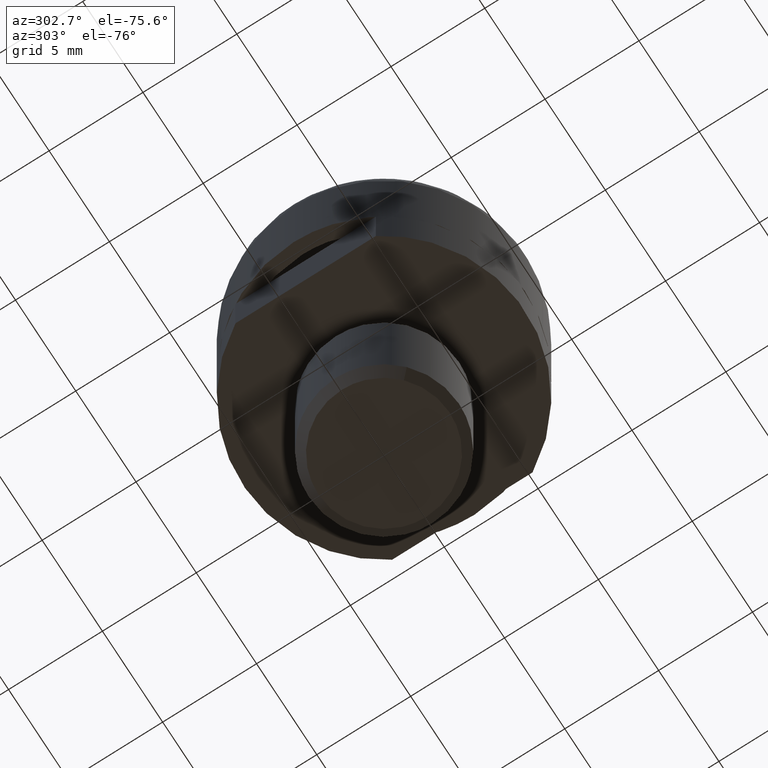
[diagram: clean part render]
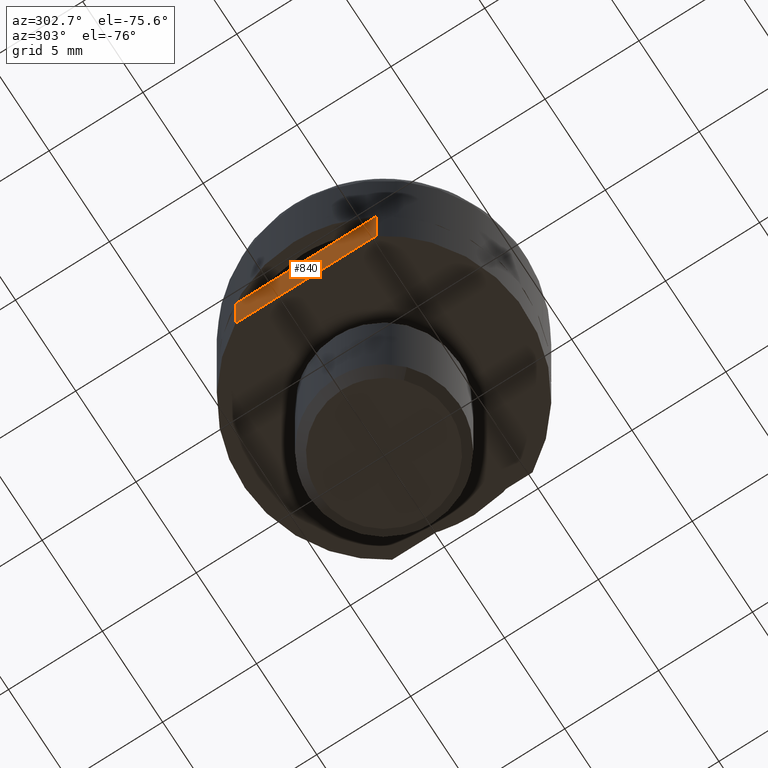
[diagram: same view with one face highlighted and labeled with its STEP entity id]
A machine part, auxiliary view. The second image highlights one B-rep face of the part: STEP entity #840.
In plain terms, the highlighted face is a freeform B-spline surface patch.
Its self-contained STEP definition (entity closure, byte-faithful):
#665=CARTESIAN_POINT('',(-6.500000000000000,3.741657386773945,0.0));
#666=VERTEX_POINT('',#665);
#688=CARTESIAN_POINT('',(-6.500000000000000,-3.741657386773940,0.0));
#689=VERTEX_POINT('',#688);
#690=CARTESIAN_POINT('',(-6.500000000000000,3.741657386773945,0.0));
#691=CARTESIAN_POINT('',(-6.500000000000000,-3.741657386773940,0.0));
#692=QUASI_UNIFORM_CURVE('',1,(#690,#691),.UNSPECIFIED.,.F.,.U.);
#693=EDGE_CURVE('',#666,#689,#692,.T.);
#734=CARTESIAN_POINT('',(-6.500000000000000,-3.741657386773940,-3.499999999999950));
#735=VERTEX_POINT('',#734);
#757=CARTESIAN_POINT('',(-6.500000000000000,3.741657386773945,-3.499999999999950));
#758=VERTEX_POINT('',#757);
#759=CARTESIAN_POINT('',(-6.500000000000000,3.741657386773945,-3.499999999999950));
#760=CARTESIAN_POINT('',(-6.500000000000000,-3.741657386773940,-3.499999999999950));
#761=QUASI_UNIFORM_CURVE('',1,(#759,#760),.UNSPECIFIED.,.F.,.U.);
#762=EDGE_CURVE('',#758,#735,#761,.T.);
#811=CARTESIAN_POINT('',(-6.500000000000000,-3.741657386773940,-3.499999999999950));
#812=CARTESIAN_POINT('',(-6.500000000000000,-3.741657386773940,0.0));
#813=QUASI_UNIFORM_CURVE('',1,(#811,#812),.UNSPECIFIED.,.F.,.U.);
#814=EDGE_CURVE('',#735,#689,#813,.T.);
#825=CARTESIAN_POINT('',(-6.500000000000000,-4.115448945208541,-3.674824993216269));
#826=CARTESIAN_POINT('',(-6.500000000000000,-4.115448945208541,0.174825087093634));
#827=CARTESIAN_POINT('',(-6.500000000000000,4.115449145926689,-3.674824993216269));
#828=CARTESIAN_POINT('',(-6.500000000000000,4.115449145926689,0.174825087093634));
#829=B_SPLINE_SURFACE_WITH_KNOTS('',1,1,((#825,#827),(#826,#828)),.UNSPECIFIED.,.F.,.F.,.U.,(2,2),(2,2),(0.0,3.849650080309903),(0.0,8.230898091135231),.UNSPECIFIED.);
#830=ORIENTED_EDGE('',*,*,#693,.F.);
#831=CARTESIAN_POINT('',(-6.500000000000000,3.741657386773945,-3.499999999999950));
#832=CARTESIAN_POINT('',(-6.500000000000000,3.741657386773945,0.0));
#833=QUASI_UNIFORM_CURVE('',1,(#831,#832),.UNSPECIFIED.,.F.,.U.);
#834=EDGE_CURVE('',#758,#666,#833,.T.);
#835=ORIENTED_EDGE('',*,*,#834,.F.);
#836=ORIENTED_EDGE('',*,*,#762,.T.);
#837=ORIENTED_EDGE('',*,*,#814,.T.);
#838=EDGE_LOOP('',(#830,#835,#836,#837));
#839=FACE_OUTER_BOUND('',#838,.T.);
#840=ADVANCED_FACE('',(#839),#829,.T.);